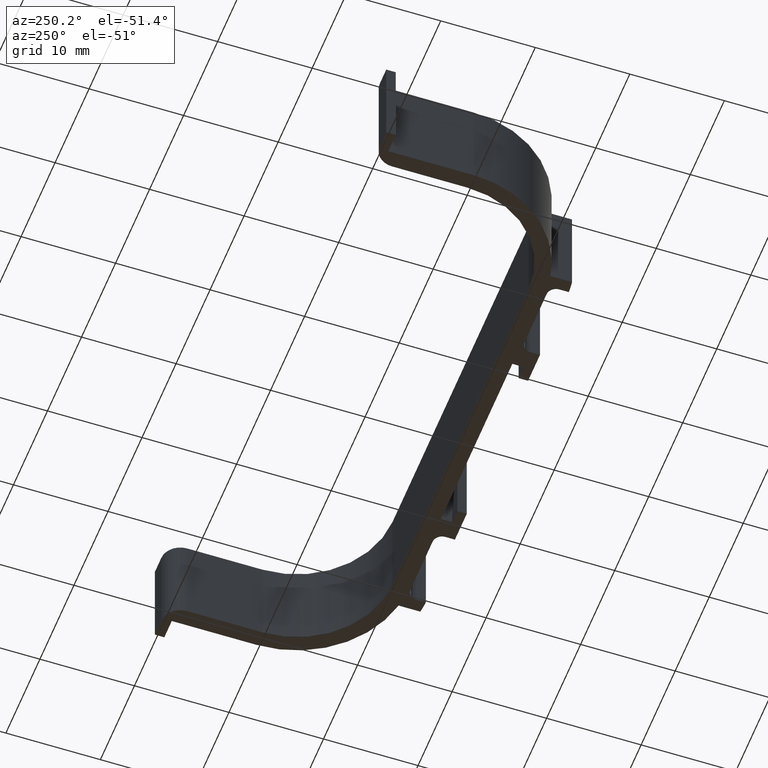
[diagram: clean part render]
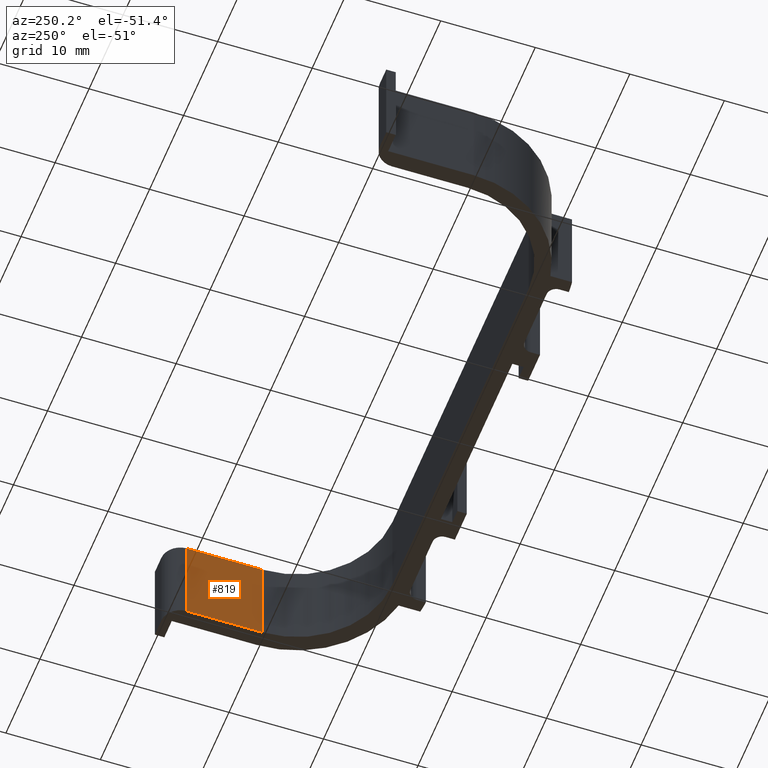
[diagram: same view with one face highlighted and labeled with its STEP entity id]
A machine part, auxiliary view. The second image highlights one B-rep face of the part: STEP entity #819.
In plain terms, the highlighted planar face has unit normal (1, 0, 0).
Its self-contained STEP definition (entity closure, byte-faithful):
#30=PLANE('',#887);
#67=FACE_OUTER_BOUND('',#109,.T.);
#109=EDGE_LOOP('',(#705,#706,#707,#708));
#156=LINE('',#1217,#252);
#165=LINE('',#1243,#261);
#206=LINE('',#1341,#302);
#207=LINE('',#1343,#303);
#252=VECTOR('',#962,7.99999999999999);
#261=VECTOR('',#987,7.99999999999999);
#302=VECTOR('',#1078,10.);
#303=VECTOR('',#1081,10.);
#382=VERTEX_POINT('',#1214);
#383=VERTEX_POINT('',#1216);
#391=VERTEX_POINT('',#1240);
#392=VERTEX_POINT('',#1242);
#463=EDGE_CURVE('',#382,#383,#156,.T.);
#476=EDGE_CURVE('',#391,#392,#165,.T.);
#526=EDGE_CURVE('',#392,#382,#206,.T.);
#527=EDGE_CURVE('',#383,#391,#207,.T.);
#705=ORIENTED_EDGE('',*,*,#526,.F.);
#706=ORIENTED_EDGE('',*,*,#476,.F.);
#707=ORIENTED_EDGE('',*,*,#527,.F.);
#708=ORIENTED_EDGE('',*,*,#463,.F.);
#819=ADVANCED_FACE('',(#67),#30,.F.);
#887=AXIS2_PLACEMENT_3D('',#1342,#1079,#1080);
#962=DIRECTION('',(8.88178419700126E-16,-1.,0.));
#987=DIRECTION('',(-8.88178419700126E-16,1.,0.));
#1078=DIRECTION('',(0.,0.,1.));
#1079=DIRECTION('center_axis',(1.,8.88178419700126E-16,0.));
#1080=DIRECTION('ref_axis',(0.,0.,-1.));
#1081=DIRECTION('',(0.,0.,-1.));
#1214=CARTESIAN_POINT('',(30.1,18.,5.));
#1216=CARTESIAN_POINT('',(30.1,10.,5.));
#1217=CARTESIAN_POINT('',(30.1,6.9602573135242,5.));
#1240=CARTESIAN_POINT('',(30.1,10.,-5.));
#1242=CARTESIAN_POINT('',(30.1,18.,-5.));
#1243=CARTESIAN_POINT('',(30.1,6.9602573135242,-5.));
#1341=CARTESIAN_POINT('',(30.1,18.,2.5));
#1342=CARTESIAN_POINT('Origin',(30.1,10.,5.));
#1343=CARTESIAN_POINT('',(30.1,10.,5.));